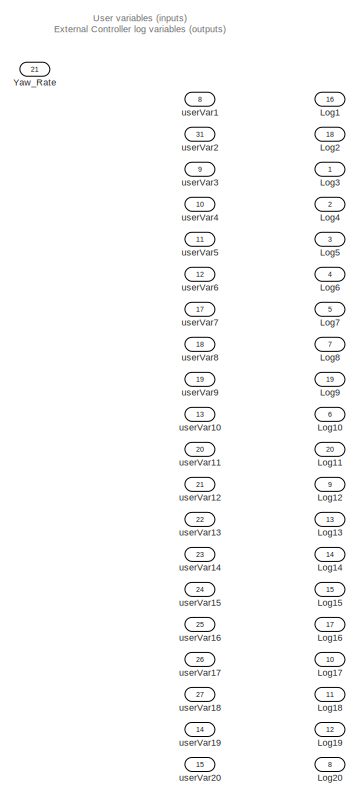
[diagram: root canvas - part 1/2, right side, full height]
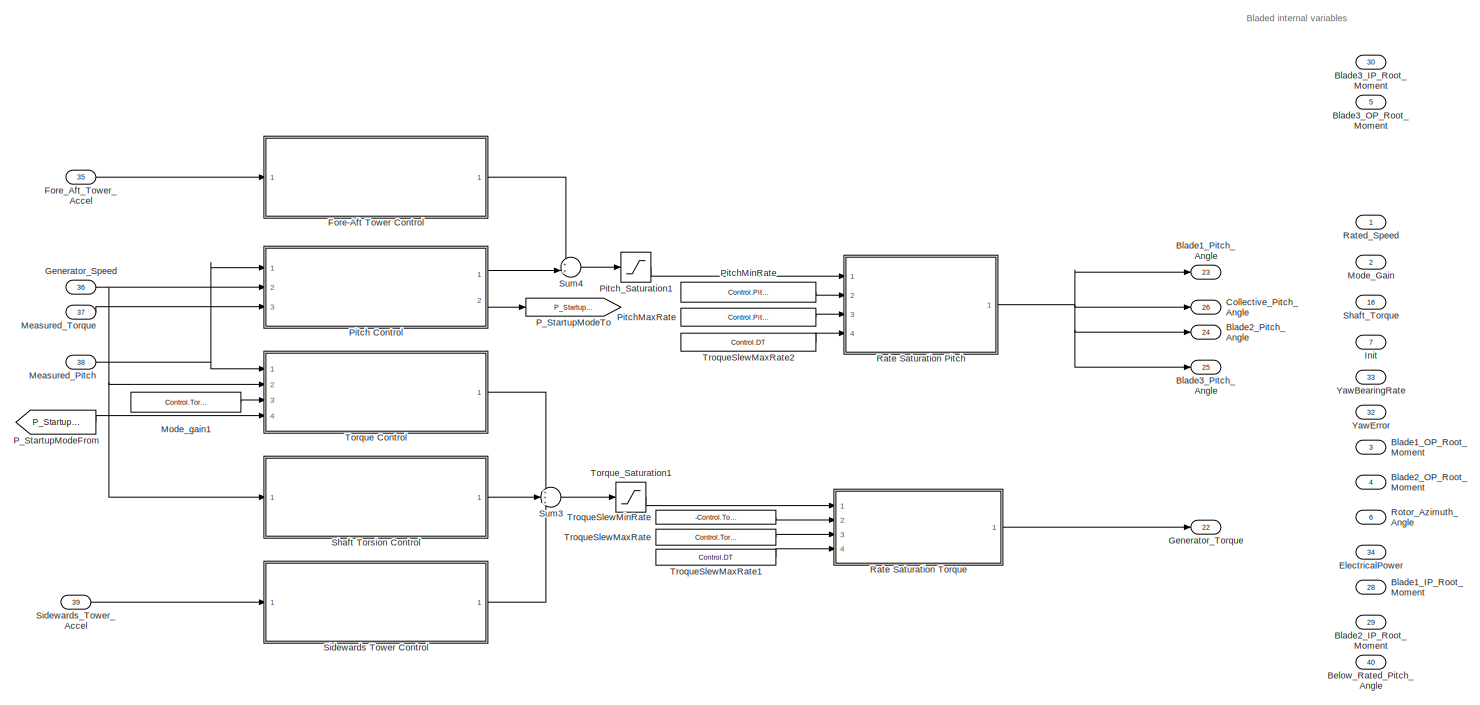
[diagram: root canvas - part 2/2, most of the canvas]
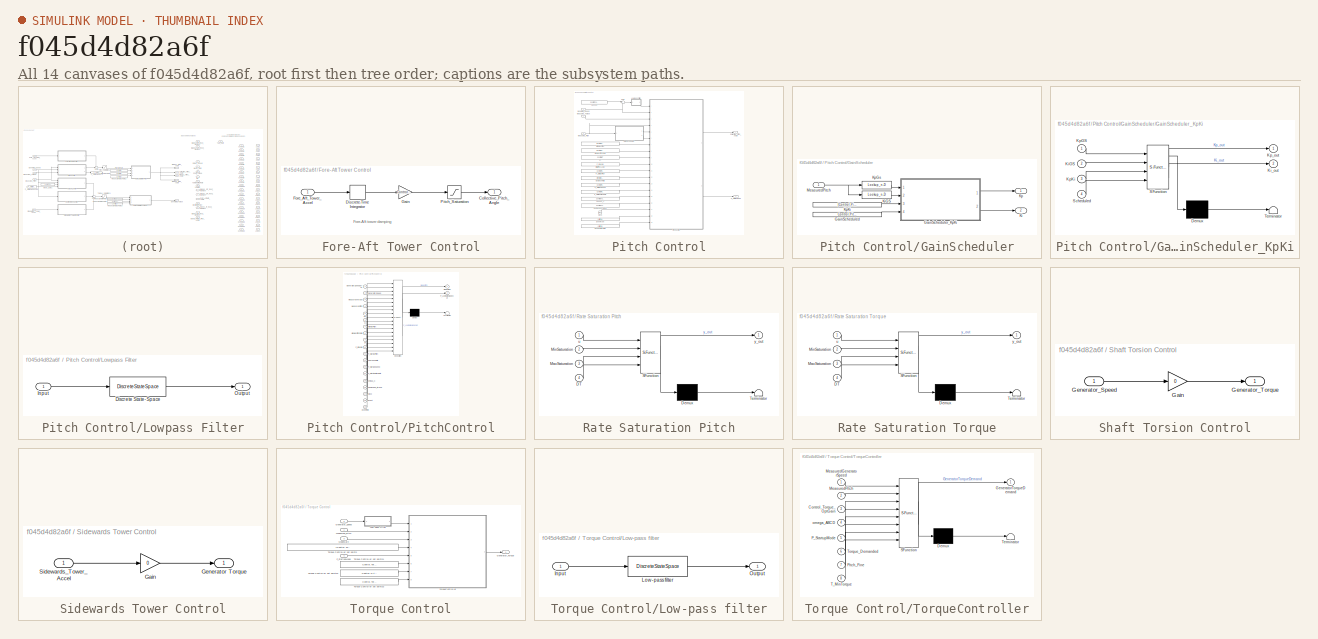
[diagram: thumbnail index - all 14 canvases of the model, root first then tree order]
MODEL slx_f045d4d82a6f
KIND model
CONFIG AbsTol = auto
CONFIG EnableMultiTasking = off
CONFIG FixedStep = Control.DT
CONFIG MaxStep = auto
CONFIG MinStep = auto
CONFIG RelTol = 1e-3
CONFIG SampleTimeConstraint = Unconstrained
CONFIG Solver = FixedStepDiscrete
CONFIG SolverName = FixedStepDiscrete
CONFIG StartTime = 0.0
CONFIG StopTime = inf
BLOCK [Inport] Below_Rated_Pitch_Angle
  IconDisplay = Port number
  Port = 40
  PortDimensions = 1
  SignalType = real
BLOCK [Inport] Blade1_IP_Root_Moment
  IconDisplay = Port number
  Port = 28
  PortDimensions = 1
  SignalType = real
  VarSizeSig = No
BLOCK [Inport] Blade1_OP_Root_Moment
  IconDisplay = Port number
  Port = 3
  PortDimensions = 1
  SignalType = real
  VarSizeSig = No
BLOCK [Outport] Blade1_Pitch_Angle
  IconDisplay = Port number
  Port = 23
  PortDimensions = 1
  SignalType = real
  VarSizeSig = No
BLOCK [Inport] Blade2_IP_Root_Moment
  IconDisplay = Port number
  Port = 29
  PortDimensions = 1
  SignalType = real
  VarSizeSig = No
BLOCK [Inport] Blade2_OP_Root_Moment
  IconDisplay = Port number
  Port = 4
  PortDimensions = 1
  SignalType = real
  VarSizeSig = No
BLOCK [Outport] Blade2_Pitch_Angle
  IconDisplay = Port number
  Port = 24
  PortDimensions = 1
  SignalType = real
  VarSizeSig = No
BLOCK [Inport] Blade3_IP_Root_Moment
  IconDisplay = Port number
  Port = 30
  PortDimensions = 1
  SignalType = real
  VarSizeSig = No
BLOCK [Inport] Blade3_OP_Root_Moment
  IconDisplay = Port number
  Port = 5
  PortDimensions = 1
  SignalType = real
  VarSizeSig = No
BLOCK [Outport] Blade3_Pitch_Angle
  IconDisplay = Port number
  Port = 25
  PortDimensions = 1
  SignalType = real
  VarSizeSig = No
BLOCK [Outport] Collective_Pitch_Angle
  IconDisplay = Port number
  Port = 26
  PortDimensions = 1
  SignalType = real
  VarSizeSig = No
BLOCK [Inport] ElectricalPower
  IconDisplay = Port number
  Port = 34
  PortDimensions = 1
  SignalType = real
BLOCK [SubSystem] Fore-Aft Tower Control
  Ports = [1, 1]
  RequestExecContextInheritance = off
BLOCK [Outport] Fore-Aft Tower Control/Collective_Pitch_Angle
  IconDisplay = Port number
BLOCK [DiscreteIntegrator] Fore-Aft Tower Control/Discrete-Time Integrator
  ICPrevOutput = DiscIntNeverNeededParam
  ICPrevScaledInput = DiscIntNeverNeededParam
  Ports = [1, 1]
  SampleTime = -1
BLOCK [Inport] Fore-Aft Tower Control/Fore_Aft_Tower_Accel
  IconDisplay = Port number
BLOCK [Gain] Fore-Aft Tower Control/Gain
  Gain = Control.ForeAft.Gain
  OutDataTypeStr = Inherit: Inherit via internal rule
  ParamDataTypeStr = Inherit: Inherit via internal rule
  SaturateOnIntegerOverflow = off
BLOCK [Saturate] Fore-Aft Tower Control/Pitch_Saturation
  InputPortMap = u0
  LowerLimit = -Control.ForeAft.MaxPitchAmplitude*pi/180
  Ports = [1, 1]
  UpperLimit = Control.ForeAft.MaxPitchAmplitude*pi/180
BLOCK [Inport] Fore_Aft_Tower_Accel
  IconDisplay = Port number
  Port = 35
  PortDimensions = 1
  SignalType = real
BLOCK [Inport] Generator_Speed
  IconDisplay = Port number
  Port = 36
  PortDimensions = 1
  SignalType = real
BLOCK [Outport] Generator_Torque
  IconDisplay = Port number
  Port = 22
  PortDimensions = 1
  SignalType = real
BLOCK [Inport] Init
  IconDisplay = Port number
  Port = 7
  PortDimensions = 1
  SignalType = real
BLOCK [Outport] Log1
  IconDisplay = Port number
  Port = 16
  PortDimensions = 1
  SignalType = real
  VarSizeSig = No
BLOCK [Outport] Log10
  IconDisplay = Port number
  Port = 6
  PortDimensions = 1
  SignalType = real
  VarSizeSig = No
BLOCK [Outport] Log11
  IconDisplay = Port number
  Port = 20
  PortDimensions = 1
  SignalType = real
  VarSizeSig = No
BLOCK [Outport] Log12
  IconDisplay = Port number
  Port = 9
  PortDimensions = 1
  SignalType = real
  VarSizeSig = No
BLOCK [Outport] Log13
  IconDisplay = Port number
  Port = 13
  PortDimensions = 1
  SignalType = real
  VarSizeSig = No
BLOCK [Outport] Log14
  IconDisplay = Port number
  Port = 14
  PortDimensions = 1
  SignalType = real
  VarSizeSig = No
BLOCK [Outport] Log15
  IconDisplay = Port number
  Port = 15
  PortDimensions = 1
  SignalType = real
  VarSizeSig = No
BLOCK [Outport] Log16
  IconDisplay = Port number
  Port = 17
  PortDimensions = 1
  SignalType = real
  VarSizeSig = No
BLOCK [Outport] Log17
  IconDisplay = Port number
  Port = 10
  PortDimensions = 1
  SignalType = real
  VarSizeSig = No
BLOCK [Outport] Log18
  IconDisplay = Port number
  Port = 11
  PortDimensions = 1
  SignalType = real
  VarSizeSig = No
BLOCK [Outport] Log19
  IconDisplay = Port number
  Port = 12
  PortDimensions = 1
  SignalType = real
  VarSizeSig = No
BLOCK [Outport] Log2
  IconDisplay = Port number
  Port = 18
  PortDimensions = 1
  SignalType = real
  VarSizeSig = No
BLOCK [Outport] Log20
  IconDisplay = Port number
  Port = 8
  PortDimensions = 1
  SignalType = real
  VarSizeSig = No
BLOCK [Outport] Log3
  IconDisplay = Port number
  PortDimensions = 1
  SignalType = real
  VarSizeSig = No
BLOCK [Outport] Log4
  IconDisplay = Port number
  Port = 2
  PortDimensions = 1
  SignalType = real
  VarSizeSig = No
BLOCK [Outport] Log5
  IconDisplay = Port number
  Port = 3
  PortDimensions = 1
  SignalType = real
  VarSizeSig = No
BLOCK [Outport] Log6
  IconDisplay = Port number
  Port = 4
  PortDimensions = 1
  SignalType = real
  VarSizeSig = No
BLOCK [Outport] Log7
  IconDisplay = Port number
  Port = 5
  PortDimensions = 1
  SignalType = real
  VarSizeSig = No
BLOCK [Outport] Log8
  IconDisplay = Port number
  Port = 7
  PortDimensions = 1
  SignalType = real
  VarSizeSig = No
BLOCK [Outport] Log9
  IconDisplay = Port number
  Port = 19
  PortDimensions = 1
  SignalType = real
  VarSizeSig = No
BLOCK [Inport] Measured_Pitch
  IconDisplay = Port number
  Port = 38
  PortDimensions = 1
  SignalType = real
BLOCK [Inport] Measured_Torque
  IconDisplay = Port number
  Port = 37
  PortDimensions = 1
  SignalType = real
BLOCK [Inport] Mode_Gain
  IconDisplay = Port number
  Port = 2
  PortDimensions = 1
  SignalType = real
BLOCK [Constant] Mode_gain1
  Value = Control.Torque.OptGain
BLOCK [From] P_StartupModeFrom
  CloseFcn = tagdialog Close
  GotoTag = P_StartupMode
BLOCK [Goto] P_StartupModeTo
  GotoTag = P_StartupMode
BLOCK [SubSystem] Pitch Control
  Ports = [3, 2]
  RequestExecContextInheritance = off
BLOCK [Clock] Pitch Control/Clock
BLOCK [Outport] Pitch Control/Collective_Pitch_Angle
  IconDisplay = Port number
BLOCK [Constant] Pitch Control/DT
  Value = Control.DT
BLOCK [Constant] Pitch Control/DemandedTorque
  Value = Control.Torque.Demanded
BLOCK [Constant] Pitch Control/EventActionTime
  Value = CertificationSettings.Mode.Actiontime
BLOCK [Constant] Pitch Control/EventType
  Value = CertificationSettings.Mode.Type
BLOCK [SubSystem] Pitch Control/GainScheduler
  Ports = [1, 2]
  RequestExecContextInheritance = off
BLOCK [Constant] Pitch Control/GainScheduler/GainScheduled
  Value = Control.Pitch.Scheduled
BLOCK [SubSystem] Pitch Control/GainScheduler/GainScheduler_KpKi
  ErrorFcn = Stateflow.Translate.translate
  PermitHierarchicalResolution = ExplicitOnly
  Ports = [4, 2]
  RequestExecContextInheritance = off
  SFBlockType = MATLAB Function
  TreatAsAtomicUnit = on
BLOCK [Demux] Pitch Control/GainScheduler/GainScheduler_KpKi/ Demux 
  Outputs = 1
  Ports = [1, 1]
BLOCK [S-Function] Pitch Control/GainScheduler/GainScheduler_KpKi/ SFunction 
  EnableBusSupport = off
  FunctionName = sf_sfun
  PortCounts = [4 3]
  Ports = [4, 3]
  SFcnIsStateOwnerBlock = off
  SFunctionDeploymentMode = off
  Tag = Stateflow S-Function DISCON_NREL5MW 5
BLOCK [Terminator] Pitch Control/GainScheduler/GainScheduler_KpKi/ Terminator 
BLOCK [Inport] Pitch Control/GainScheduler/GainScheduler_KpKi/KiGS
  IconDisplay = Port number
  Port = 2
BLOCK [Outport] Pitch Control/GainScheduler/GainScheduler_KpKi/Ki_out
  IconDisplay = Port number
  Port = 2
BLOCK [Inport] Pitch Control/GainScheduler/GainScheduler_KpKi/KpGS
  IconDisplay = Port number
BLOCK [Inport] Pitch Control/GainScheduler/GainScheduler_KpKi/KpKi
  IconDisplay = Port number
  Port = 3
BLOCK [Outport] Pitch Control/GainScheduler/GainScheduler_KpKi/Kp_out
  IconDisplay = Port number
BLOCK [Inport] Pitch Control/GainScheduler/GainScheduler_KpKi/Scheduled
  IconDisplay = Port number
  Port = 4
BLOCK [Outport] Pitch Control/GainScheduler/Ki
  IconDisplay = Port number
  Port = 2
BLOCK [Lookup_n-D] Pitch Control/GainScheduler/KiGS
  BreakpointsForDimension1 = Control.Pitch.ScheduledPitchAngles
  ExtrapMethod = Clip
  InternalRulePriority = Speed
  NumberOfTableDimensions = 1
  Ports = [1, 1]
  RndMeth = Simplest
  Table = Control.Pitch.KiGS
  UseLastTableValue = on
BLOCK [Outport] Pitch Control/GainScheduler/Kp
  IconDisplay = Port number
BLOCK [Lookup_n-D] Pitch Control/GainScheduler/KpGs
  BreakpointsForDimension1 = Control.Pitch.ScheduledPitchAngles
  ExtrapMethod = Clip
  InternalRulePriority = Speed
  NumberOfTableDimensions = 1
  Ports = [1, 1]
  RndMeth = Simplest
  Table = Control.Pitch.KpGS
  UseLastTableValue = on
BLOCK [Constant] Pitch Control/GainScheduler/KpKi
  Value = [Control.Pitch.Kp Control.Pitch.Ki]
BLOCK [Inport] Pitch Control/GainScheduler/MeasuredPitch
  IconDisplay = Port number
BLOCK [Constant] Pitch Control/GearboxRatio
  Value = Drivetrain.Gearbox.Ratio
BLOCK [Inport] Pitch Control/Generator_Speed
  IconDisplay = Port number
  Port = 2
BLOCK [Constant] Pitch Control/InitialPitchAngle
  Value = P_InitAngle
BLOCK [SubSystem] Pitch Control/Lowpass Filter
  Ports = [1, 1]
  RequestExecContextInheritance = off
BLOCK [DiscreteStateSpace] Pitch Control/Lowpass Filter/Discrete State-Space
  A = dLP.a
  B = dLP.b
  C = dLP.c
  D = dLP.d
  SampleTime = -1
BLOCK [Inport] Pitch Control/Lowpass Filter/Input
  IconDisplay = Port number
BLOCK [Outport] Pitch Control/Lowpass Filter/Output
  IconDisplay = Port number
BLOCK [Inport] Pitch Control/Measured_Pitch
  IconDisplay = Port number
BLOCK [Inport] Pitch Control/Measured_Torque
  IconDisplay = Port number
  Port = 3
BLOCK [Constant] Pitch Control/MinMaxPitch
  Value = [Control.Pitch.Fine Control.Pitch.Max]
BLOCK [Constant] Pitch Control/MinMaxPitchRate
  Value = [Control.Pitch.Minrate Control.Pitch.Maxrate]
BLOCK [Outport] Pitch Control/P_StartupMode
  IconDisplay = Port number
  Port = 2
BLOCK [Constant] Pitch Control/P_StartupPitch
  Value = Control.Pitch.StartupPitch
BLOCK [Constant] Pitch Control/P_StartupPitchRate
  Value = Control.Pitch.StartupPitchRate
BLOCK [Constant] Pitch Control/P_StartupSpeed
  Value = Control.Pitch.StartupSpeed
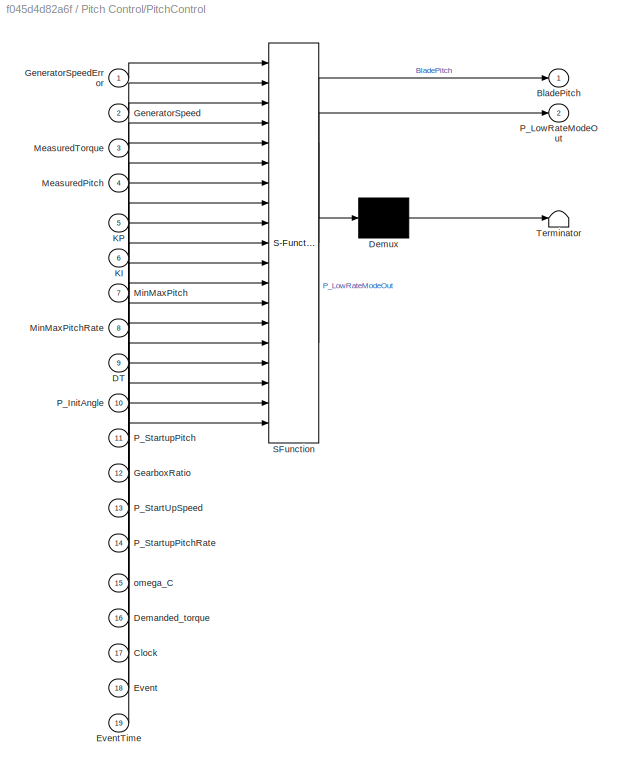
BLOCK [SubSystem] Pitch Control/PitchControl
  ErrorFcn = Stateflow.Translate.translate
  PermitHierarchicalResolution = ExplicitOnly
  Ports = [19, 2]
  RequestExecContextInheritance = off
  SFBlockType = MATLAB Function
  TreatAsAtomicUnit = on
BLOCK [Demux] Pitch Control/PitchControl/ Demux 
  Outputs = 1
  Ports = [1, 1]
BLOCK [S-Function] Pitch Control/PitchControl/ SFunction 
  EnableBusSupport = off
  FunctionName = sf_sfun
  PortCounts = [19 3]
  Ports = [19, 3]
  SFcnIsStateOwnerBlock = off
  SFunctionDeploymentMode = off
  Tag = Stateflow S-Function DISCON_NREL5MW 4
BLOCK [Terminator] Pitch Control/PitchControl/ Terminator 
BLOCK [Outport] Pitch Control/PitchControl/BladePitch
  IconDisplay = Port number
BLOCK [Inport] Pitch Control/PitchControl/Clock
  IconDisplay = Port number
  Port = 17
BLOCK [Inport] Pitch Control/PitchControl/DT
  IconDisplay = Port number
  Port = 9
BLOCK [Inport] Pitch Control/PitchControl/Demanded_torque
  IconDisplay = Port number
  Port = 16
BLOCK [Inport] Pitch Control/PitchControl/Event
  IconDisplay = Port number
  Port = 18
BLOCK [Inport] Pitch Control/PitchControl/EventTime
  IconDisplay = Port number
  Port = 19
BLOCK [Inport] Pitch Control/PitchControl/GearboxRatio
  IconDisplay = Port number
  Port = 12
BLOCK [Inport] Pitch Control/PitchControl/GeneratorSpeed
  IconDisplay = Port number
  Port = 2
BLOCK [Inport] Pitch Control/PitchControl/GeneratorSpeedError
  IconDisplay = Port number
BLOCK [Inport] Pitch Control/PitchControl/KI
  IconDisplay = Port number
  Port = 6
BLOCK [Inport] Pitch Control/PitchControl/KP
  IconDisplay = Port number
  Port = 5
BLOCK [Inport] Pitch Control/PitchControl/MeasuredPitch
  IconDisplay = Port number
  Port = 4
BLOCK [Inport] Pitch Control/PitchControl/MeasuredTorque
  IconDisplay = Port number
  Port = 3
BLOCK [Inport] Pitch Control/PitchControl/MinMaxPitch
  IconDisplay = Port number
  Port = 7
BLOCK [Inport] Pitch Control/PitchControl/MinMaxPitchRate
  IconDisplay = Port number
  Port = 8
BLOCK [Inport] Pitch Control/PitchControl/P_InitAngle
  IconDisplay = Port number
  Port = 10
BLOCK [Outport] Pitch Control/PitchControl/P_LowRateModeOut
  IconDisplay = Port number
  Port = 2
BLOCK [Inport] Pitch Control/PitchControl/P_StartUpSpeed
  IconDisplay = Port number
  Port = 13
BLOCK [Inport] Pitch Control/PitchControl/P_StartupPitch
  IconDisplay = Port number
  Port = 11
BLOCK [Inport] Pitch Control/PitchControl/P_StartupPitchRate
  IconDisplay = Port number
  Port = 14
BLOCK [Inport] Pitch Control/PitchControl/omega_C
  IconDisplay = Port number
  Port = 15
BLOCK [Constant] Pitch Control/SpeedC
  Value = Control.Torque.SpeedC*pi/30
BLOCK [Constant] Pitch Control/SpeedC_2
  Value = Control.Torque.SpeedC
BLOCK [Sum] Pitch Control/Sum
  IconShape = round
  InputSameDT = off
  Inputs = |+-
  OutDataTypeStr = Inherit: Inherit via internal rule
  Ports = [2, 1]
  SaturateOnIntegerOverflow = off
BLOCK [Constant] PitchMaxRate
  Value = Control.Pitch.Maxrate/180*pi
BLOCK [Constant] PitchMinRate
  Value = Control.Pitch.Minrate/180*pi
BLOCK [Saturate] Pitch_Saturation1
  InputPortMap = u0
  LowerLimit = Control.Pitch.Min*pi/180
  Ports = [1, 1]
  UpperLimit = Control.Pitch.Max*pi/180
BLOCK [SubSystem] Rate Saturation Pitch
  ErrorFcn = Stateflow.Translate.translate
  PermitHierarchicalResolution = ExplicitOnly
  Ports = [4, 1]
  RequestExecContextInheritance = off
  SFBlockType = MATLAB Function
  TreatAsAtomicUnit = on
BLOCK [Demux] Rate Saturation Pitch/ Demux 
  Outputs = 1
  Ports = [1, 1]
BLOCK [S-Function] Rate Saturation Pitch/ SFunction 
  EnableBusSupport = off
  FunctionName = sf_sfun
  PortCounts = [4 2]
  Ports = [4, 2]
  SFcnIsStateOwnerBlock = off
  SFunctionDeploymentMode = off
  Tag = Stateflow S-Function DISCON_NREL5MW 3
BLOCK [Terminator] Rate Saturation Pitch/ Terminator 
BLOCK [Inport] Rate Saturation Pitch/DT
  IconDisplay = Port number
  Port = 4
BLOCK [Inport] Rate Saturation Pitch/MaxSaturation
  IconDisplay = Port number
  Port = 3
BLOCK [Inport] Rate Saturation Pitch/MinSaturation
  IconDisplay = Port number
  Port = 2
BLOCK [Inport] Rate Saturation Pitch/u
  IconDisplay = Port number
BLOCK [Outport] Rate Saturation Pitch/y_out
  IconDisplay = Port number
BLOCK [SubSystem] Rate Saturation Torque
  ErrorFcn = Stateflow.Translate.translate
  PermitHierarchicalResolution = ExplicitOnly
  Ports = [4, 1]
  RequestExecContextInheritance = off
  SFBlockType = MATLAB Function
  TreatAsAtomicUnit = on
BLOCK [Demux] Rate Saturation Torque/ Demux 
  Outputs = 1
  Ports = [1, 1]
BLOCK [S-Function] Rate Saturation Torque/ SFunction 
  EnableBusSupport = off
  FunctionName = sf_sfun
  PortCounts = [4 2]
  Ports = [4, 2]
  SFcnIsStateOwnerBlock = off
  SFunctionDeploymentMode = off
  Tag = Stateflow S-Function DISCON_NREL5MW 6
BLOCK [Terminator] Rate Saturation Torque/ Terminator 
BLOCK [Inport] Rate Saturation Torque/DT
  IconDisplay = Port number
  Port = 4
BLOCK [Inport] Rate Saturation Torque/MaxSaturation
  IconDisplay = Port number
  Port = 3
BLOCK [Inport] Rate Saturation Torque/MinSaturation
  IconDisplay = Port number
  Port = 2
BLOCK [Inport] Rate Saturation Torque/u
  IconDisplay = Port number
BLOCK [Outport] Rate Saturation Torque/y_out
  IconDisplay = Port number
BLOCK [Inport] Rated_Speed
  IconDisplay = Port number
  PortDimensions = 1
  SignalType = real
BLOCK [Inport] Rotor_Azimuth_Angle
  IconDisplay = Port number
  Port = 6
  PortDimensions = 1
  SignalType = real
  VarSizeSig = No
BLOCK [SubSystem] Shaft Torsion Control
  Ports = [1, 1]
  RequestExecContextInheritance = off
BLOCK [Gain] Shaft Torsion Control/Gain
  Gain = 0
  OutDataTypeStr = Inherit: Inherit via internal rule
  ParamDataTypeStr = Inherit: Inherit via internal rule
  SaturateOnIntegerOverflow = off
BLOCK [Inport] Shaft Torsion Control/Generator_Speed
  IconDisplay = Port number
BLOCK [Outport] Shaft Torsion Control/Generator_Torque
  IconDisplay = Port number
BLOCK [Inport] Shaft_Torque
  IconDisplay = Port number
  Port = 16
  PortDimensions = 1
  SignalType = real
BLOCK [SubSystem] Sidewards Tower Control
  Ports = [1, 1]
  RequestExecContextInheritance = off
BLOCK [Gain] Sidewards Tower Control/Gain
  Gain = 0
  OutDataTypeStr = Inherit: Inherit via internal rule
  ParamDataTypeStr = Inherit: Inherit via internal rule
  SaturateOnIntegerOverflow = off
BLOCK [Outport] Sidewards Tower Control/Generator Torque
  IconDisplay = Port number
BLOCK [Inport] Sidewards Tower Control/Sidewards_Tower_Accel
  IconDisplay = Port number
BLOCK [Inport] Sidewards_Tower_Accel
  IconDisplay = Port number
  Port = 39
  PortDimensions = 1
  SignalType = real
BLOCK [Sum] Sum3
  IconShape = round
  InputSameDT = off
  Inputs = +++
  OutDataTypeStr = Inherit: Inherit via internal rule
  Ports = [3, 1]
  SaturateOnIntegerOverflow = off
BLOCK [Sum] Sum4
  IconShape = round
  InputSameDT = off
  Inputs = ++|
  OutDataTypeStr = Inherit: Inherit via internal rule
  Ports = [2, 1]
  SaturateOnIntegerOverflow = off
BLOCK [SubSystem] Torque Control
  Ports = [4, 1]
  RequestExecContextInheritance = off
BLOCK [Inport] Torque Control/Generator_Speed
  IconDisplay = Port number
  Port = 2
BLOCK [Outport] Torque Control/Generator_Torque
  IconDisplay = Port number
BLOCK [SubSystem] Torque Control/Low-pass filter
  Ports = [1, 1]
  RequestExecContextInheritance = off
BLOCK [Inport] Torque Control/Low-pass filter/Input
  IconDisplay = Port number
BLOCK [DiscreteStateSpace] Torque Control/Low-pass filter/Low-pass filter
  A = dLP.a
  B = dLP.b
  C = dLP.c
  D = dLP.d
  InitialCondition = T_GenSpeedInit*(pi/30)/dLP.c
  SampleTime = -1
BLOCK [Outport] Torque Control/Low-pass filter/Output
  IconDisplay = Port number
BLOCK [Inport] Torque Control/Measured_Pitch
  IconDisplay = Port number
BLOCK [Inport] Torque Control/ModeGain
  IconDisplay = Port number
  Port = 3
BLOCK [Inport] Torque Control/P_StartupMode
  IconDisplay = Port number
  Port = 4
BLOCK [Constant] Torque Control/Torque Controller set points
  Value = [Control.Torque.SpeedA Control.Torque.SpeedB Control.Torque.SpeedB2 Control.Torque.SpeedC]
BLOCK [Constant] Torque Control/Torque Controller set points1
  Value = Control.Torque.Demanded
BLOCK [Constant] Torque Control/Torque Controller set points2
  Value = Control.Pitch.Fine
BLOCK [Constant] Torque Control/Torque Controller set points3
  Value = Control.Torque.Min
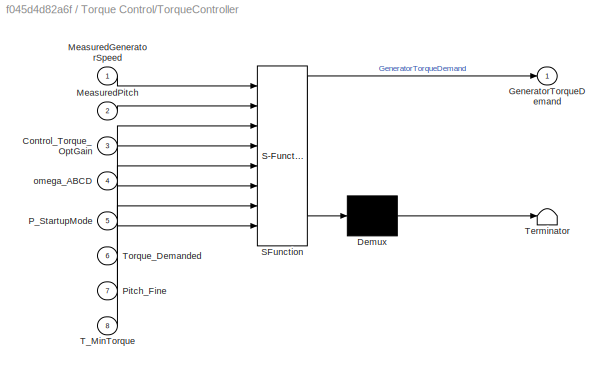
BLOCK [SubSystem] Torque Control/TorqueController
  ErrorFcn = Stateflow.Translate.translate
  PermitHierarchicalResolution = ExplicitOnly
  Ports = [8, 1]
  RequestExecContextInheritance = off
  SFBlockType = MATLAB Function
  TreatAsAtomicUnit = on
BLOCK [Demux] Torque Control/TorqueController/ Demux 
  Outputs = 1
  Ports = [1, 1]
BLOCK [S-Function] Torque Control/TorqueController/ SFunction 
  EnableBusSupport = off
  FunctionName = sf_sfun
  PortCounts = [8 2]
  Ports = [8, 2]
  SFcnIsStateOwnerBlock = off
  SFunctionDeploymentMode = off
  Tag = Stateflow S-Function DISCON_NREL5MW 7
BLOCK [Terminator] Torque Control/TorqueController/ Terminator 
BLOCK [Inport] Torque Control/TorqueController/Control_Torque_OptGain
  IconDisplay = Port number
  Port = 3
BLOCK [Outport] Torque Control/TorqueController/GeneratorTorqueDemand
  IconDisplay = Port number
BLOCK [Inport] Torque Control/TorqueController/MeasuredGeneratorSpeed
  IconDisplay = Port number
BLOCK [Inport] Torque Control/TorqueController/MeasuredPitch
  IconDisplay = Port number
  Port = 2
BLOCK [Inport] Torque Control/TorqueController/P_StartupMode
  IconDisplay = Port number
  Port = 5
BLOCK [Inport] Torque Control/TorqueController/Pitch_Fine
  IconDisplay = Port number
  Port = 7
BLOCK [Inport] Torque Control/TorqueController/T_MinTorque
  IconDisplay = Port number
  Port = 8
BLOCK [Inport] Torque Control/TorqueController/Torque_Demanded
  IconDisplay = Port number
  Port = 6
BLOCK [Inport] Torque Control/TorqueController/omega_ABCD
  IconDisplay = Port number
  Port = 4
BLOCK [Saturate] Torque_Saturation1
  InputPortMap = u0
  LowerLimit = Control.Torque.Min
  Ports = [1, 1]
  UpperLimit = Control.Torque.Limit
BLOCK [Constant] TroqueSlewMaxRate
  Value = Control.Torque.Slewrate
BLOCK [Constant] TroqueSlewMaxRate1
  Value = Control.DT
BLOCK [Constant] TroqueSlewMaxRate2
  Value = Control.DT
BLOCK [Constant] TroqueSlewMinRate
  Value = -Control.Torque.Slewrate
BLOCK [Inport] YawBearingRate
  IconDisplay = Port number
  Port = 33
  PortDimensions = 1
  SignalType = real
BLOCK [Inport] YawError
  IconDisplay = Port number
  Port = 32
  PortDimensions = 1
  SignalType = real
BLOCK [Outport] Yaw_Rate
  IconDisplay = Port number
  Port = 21
  PortDimensions = 1
  SignalType = real
  VarSizeSig = No
BLOCK [Inport] userVar1
  IconDisplay = Port number
  Port = 8
  PortDimensions = 1
  SignalType = real
BLOCK [Inport] userVar10
  IconDisplay = Port number
  Port = 13
  PortDimensions = 1
  SignalType = real
BLOCK [Inport] userVar11
  IconDisplay = Port number
  Port = 20
  PortDimensions = 1
  SignalType = real
BLOCK [Inport] userVar12
  IconDisplay = Port number
  Port = 21
  PortDimensions = 1
  SignalType = real
BLOCK [Inport] userVar13
  IconDisplay = Port number
  Port = 22
  PortDimensions = 1
  SignalType = real
BLOCK [Inport] userVar14
  IconDisplay = Port number
  Port = 23
  PortDimensions = 1
  SignalType = real
BLOCK [Inport] userVar15
  IconDisplay = Port number
  Port = 24
  PortDimensions = 1
  SignalType = real
BLOCK [Inport] userVar16
  IconDisplay = Port number
  Port = 25
  PortDimensions = 1
  SignalType = real
BLOCK [Inport] userVar17
  IconDisplay = Port number
  Port = 26
  PortDimensions = 1
  SignalType = real
BLOCK [Inport] userVar18
  IconDisplay = Port number
  Port = 27
  PortDimensions = 1
  SignalType = real
BLOCK [Inport] userVar19
  IconDisplay = Port number
  Port = 14
  PortDimensions = 1
  SignalType = real
BLOCK [Inport] userVar2
  IconDisplay = Port number
  Port = 31
  PortDimensions = 1
  SignalType = real
BLOCK [Inport] userVar20
  IconDisplay = Port number
  Port = 15
  PortDimensions = 1
  SignalType = real
BLOCK [Inport] userVar3
  IconDisplay = Port number
  Port = 9
  PortDimensions = 1
  SignalType = real
BLOCK [Inport] userVar4
  IconDisplay = Port number
  Port = 10
  PortDimensions = 1
  SignalType = real
BLOCK [Inport] userVar5
  IconDisplay = Port number
  Port = 11
  PortDimensions = 1
  SignalType = real
BLOCK [Inport] userVar6
  IconDisplay = Port number
  Port = 12
  PortDimensions = 1
  SignalType = real
BLOCK [Inport] userVar7
  IconDisplay = Port number
  Port = 17
  PortDimensions = 1
  SignalType = real
BLOCK [Inport] userVar8
  IconDisplay = Port number
  Port = 18
  PortDimensions = 1
  SignalType = real
BLOCK [Inport] userVar9
  IconDisplay = Port number
  Port = 19
  PortDimensions = 1
  SignalType = real
ANNOTATION (root): User variables (inputs) External Controller log variables (outputs)
ANNOTATION (root): Bladed internal variables
ANNOTATION Fore-Aft Tower Control: Fore-Aft tower damping
LINE Fore-Aft Tower Control/Discrete-Time Integrator:1 -> Fore-Aft Tower Control/Gain:1
LINE Fore-Aft Tower Control/Fore_Aft_Tower_Accel:1 -> Fore-Aft Tower Control/Discrete-Time Integrator:1
LINE Fore-Aft Tower Control/Gain:1 -> Fore-Aft Tower Control/Pitch_Saturation:1
LINE Fore-Aft Tower Control/Pitch_Saturation:1 -> Fore-Aft Tower Control/Collective_Pitch_Angle:1
LINE Fore-Aft Tower Control:1 -> Sum4:1
LINE Fore_Aft_Tower_Accel:1 -> Fore-Aft Tower Control:1
NET Generator_Speed:1 -> Pitch Control:2, Shaft Torsion Control:1, Torque Control:2
NET Measured_Pitch:1 -> Pitch Control:1, Torque Control:1
LINE Measured_Torque:1 -> Pitch Control:3
LINE Mode_gain1:1 -> Torque Control:3
LINE P_StartupModeFrom:1 -> Torque Control:4
LINE Pitch Control/Clock:1 -> Pitch Control/PitchControl:17
LINE Pitch Control/DT:1 -> Pitch Control/PitchControl:9
LINE Pitch Control/DemandedTorque:1 -> Pitch Control/PitchControl:16
LINE Pitch Control/EventActionTime:1 -> Pitch Control/PitchControl:19
LINE Pitch Control/EventType:1 -> Pitch Control/PitchControl:18
LINE Pitch Control/GainScheduler/GainScheduled:1 -> Pitch Control/GainScheduler/GainScheduler_KpKi:4
LINE Pitch Control/GainScheduler/GainScheduler_KpKi:1 -> Pitch Control/GainScheduler/Kp:1
LINE Pitch Control/GainScheduler/GainScheduler_KpKi:2 -> Pitch Control/GainScheduler/Ki:1
LINE Pitch Control/GainScheduler/KiGS:1 -> Pitch Control/GainScheduler/GainScheduler_KpKi:2
LINE Pitch Control/GainScheduler/KpGs:1 -> Pitch Control/GainScheduler/GainScheduler_KpKi:1
LINE Pitch Control/GainScheduler/KpKi:1 -> Pitch Control/GainScheduler/GainScheduler_KpKi:3
NET Pitch Control/GainScheduler/MeasuredPitch:1 -> Pitch Control/GainScheduler/KiGS:1, Pitch Control/GainScheduler/KpGs:1
LINE Pitch Control/GainScheduler:1 -> Pitch Control/PitchControl:5
LINE Pitch Control/GainScheduler:2 -> Pitch Control/PitchControl:6
LINE Pitch Control/GearboxRatio:1 -> Pitch Control/PitchControl:12
NET Pitch Control/Generator_Speed:1 -> Pitch Control/PitchControl:2, Pitch Control/Sum:2
LINE Pitch Control/InitialPitchAngle:1 -> Pitch Control/PitchControl:10
LINE Pitch Control/Lowpass Filter/Discrete State-Space:1 -> Pitch Control/Lowpass Filter/Output:1
LINE Pitch Control/Lowpass Filter/Input:1 -> Pitch Control/Lowpass Filter/Discrete State-Space:1
LINE Pitch Control/Lowpass Filter:1 -> Pitch Control/PitchControl:1
NET Pitch Control/Measured_Pitch:1 -> Pitch Control/GainScheduler:1, Pitch Control/PitchControl:4
LINE Pitch Control/Measured_Torque:1 -> Pitch Control/PitchControl:3
LINE Pitch Control/MinMaxPitch:1 -> Pitch Control/PitchControl:7
LINE Pitch Control/MinMaxPitchRate:1 -> Pitch Control/PitchControl:8
LINE Pitch Control/P_StartupPitch:1 -> Pitch Control/PitchControl:11
LINE Pitch Control/P_StartupPitchRate:1 -> Pitch Control/PitchControl:14
LINE Pitch Control/P_StartupSpeed:1 -> Pitch Control/PitchControl:13
LINE Pitch Control/PitchControl:1 -> Pitch Control/Collective_Pitch_Angle:1
LINE Pitch Control/PitchControl:2 -> Pitch Control/P_StartupMode:1
LINE Pitch Control/SpeedC:1 -> Pitch Control/Sum:1
LINE Pitch Control/SpeedC_2:1 -> Pitch Control/PitchControl:15
LINE Pitch Control/Sum:1 -> Pitch Control/Lowpass Filter:1
LINE Pitch Control:1 -> Sum4:2
LINE Pitch Control:2 -> P_StartupModeTo:1
LINE PitchMaxRate:1 -> Rate Saturation Pitch:3
LINE PitchMinRate:1 -> Rate Saturation Pitch:2
LINE Pitch_Saturation1:1 -> Rate Saturation Pitch:1
NET Rate Saturation Pitch:1 -> Blade1_Pitch_Angle:1, Blade2_Pitch_Angle:1, Blade3_Pitch_Angle:1, Collective_Pitch_Angle:1
LINE Rate Saturation Torque:1 -> Generator_Torque:1
LINE Shaft Torsion Control/Gain:1 -> Shaft Torsion Control/Generator_Torque:1
LINE Shaft Torsion Control/Generator_Speed:1 -> Shaft Torsion Control/Gain:1
LINE Shaft Torsion Control:1 -> Sum3:2
LINE Sidewards Tower Control/Gain:1 -> Sidewards Tower Control/Generator Torque:1
LINE Sidewards Tower Control/Sidewards_Tower_Accel:1 -> Sidewards Tower Control/Gain:1
LINE Sidewards Tower Control:1 -> Sum3:3
LINE Sidewards_Tower_Accel:1 -> Sidewards Tower Control:1
LINE Sum3:1 -> Torque_Saturation1:1
LINE Sum4:1 -> Pitch_Saturation1:1
LINE Torque Control/Generator_Speed:1 -> Torque Control/Low-pass filter:1
LINE Torque Control/Low-pass filter/Input:1 -> Torque Control/Low-pass filter/Low-pass filter:1
LINE Torque Control/Low-pass filter/Low-pass filter:1 -> Torque Control/Low-pass filter/Output:1
LINE Torque Control/Low-pass filter:1 -> Torque Control/TorqueController:1
LINE Torque Control/Measured_Pitch:1 -> Torque Control/TorqueController:2
LINE Torque Control/ModeGain:1 -> Torque Control/TorqueController:3
LINE Torque Control/P_StartupMode:1 -> Torque Control/TorqueController:5
LINE Torque Control/Torque Controller set points1:1 -> Torque Control/TorqueController:6
LINE Torque Control/Torque Controller set points2:1 -> Torque Control/TorqueController:7
LINE Torque Control/Torque Controller set points3:1 -> Torque Control/TorqueController:8
LINE Torque Control/Torque Controller set points:1 -> Torque Control/TorqueController:4
LINE Torque Control/TorqueController:1 -> Torque Control/Generator_Torque:1
LINE Torque Control:1 -> Sum3:1
LINE Torque_Saturation1:1 -> Rate Saturation Torque:1
LINE TroqueSlewMaxRate1:1 -> Rate Saturation Torque:4
LINE TroqueSlewMaxRate2:1 -> Rate Saturation Pitch:4
LINE TroqueSlewMaxRate:1 -> Rate Saturation Torque:3
LINE TroqueSlewMinRate:1 -> Rate Saturation Torque:2
note: NET lines group one-source signal fan-out (src -> all destinations, sorted); 1:1 wires keep LINE
CHART Rate Saturation Pitch states=1 transitions=1
  STATE_LABEL 'eML_blk_kernel()'
  STATE_LABEL 'SCRIPT:\nfunction y_out = fcn(u, MinSaturation, MaxSaturation, DT)\npersistent y\n\nif isempty(y)\n    y = u;\nend\n\nrate = (u-y)/DT;\nrate = min(max(rate, MinSaturation), MaxSaturation);\n\ny = y + rate*DT;\ny_out = y;'
CHART Pitch Control/PitchControl states=1 transitions=1
  STATE_LABEL 'eML_blk_kernel()'
  STATE_LABEL 'SCRIPT:\nfunction [BladePitch, P_LowRateModeOut]  = PitchControl(GeneratorSpeedError, GeneratorSpeed, MeasuredTorque, MeasuredPitch, KP, KI, MinMaxPitch, MinMaxPitchRate, DT, P_InitAngle, P_StartupPitch, GearboxRatio, P_StartUpSpeed, P_StartupPitchRate, omega_C, Demanded_torque, Clock, Event, EventTime)\npersistent I_term PI_term_old P_LowRateMode P_LowRateMode_old\n\n%Initialize all persistent variab...<+2539ch>'
CHART Pitch Control/GainScheduler/GainScheduler_KpKi states=1 transitions=1
  STATE_LABEL 'eML_blk_kernel()'
  STATE_LABEL 'SCRIPT:\nfunction [Kp_out, Ki_out] = fcn(KpGS, KiGS, KpKi, Scheduled)\n\nif Scheduled > 0.5\n    Kp_out = KpGS;\n    Ki_out = KiGS;\nelse\n    Kp_out = KpKi(1);\n    Ki_out = KpKi(2);\nend'
CHART Rate Saturation Torque states=1 transitions=1
  STATE_LABEL 'eML_blk_kernel()'
  STATE_LABEL 'SCRIPT:\nfunction y_out = fcn(u, MinSaturation, MaxSaturation, DT)\npersistent y\n\nif isempty(y)\n    y = u;\nend\n\nrate = (u-y)/DT;\nrate = min(max(rate, MinSaturation), MaxSaturation);\n\ny = y + rate*DT;\ny_out = y;'
CHART Torque Control/TorqueController states=1 transitions=1
  STATE_LABEL 'eML_blk_kernel()'
  STATE_LABEL 'SCRIPT:\nfunction GeneratorTorqueDemand  = TorqueController(MeasuredGeneratorSpeed, MeasuredPitch, Control_Torque_OptGain, omega_ABCD, P_StartupMode, Torque_Demanded, Pitch_Fine, T_MinTorque)\n\n% Calculate generator torque setpoint according to the feedforward wind\n% turbine control law T = K*\\omega^2\nGeneratorTorqueDemand = max(min(Control_Torque_OptGain*MeasuredGeneratorSpeed^2, Torque_Demanded), ...<+963ch>'
